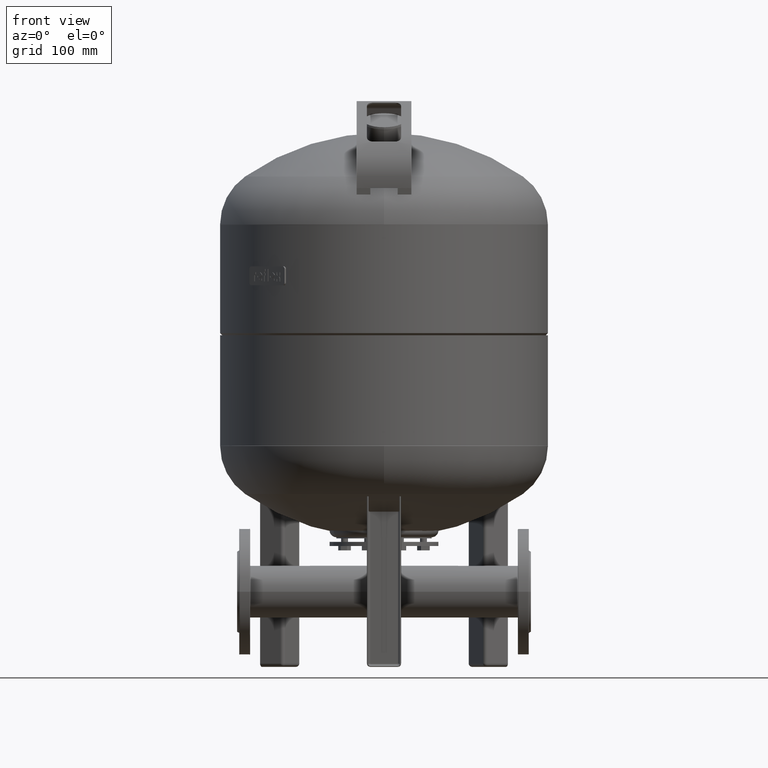
[diagram: clean part render]
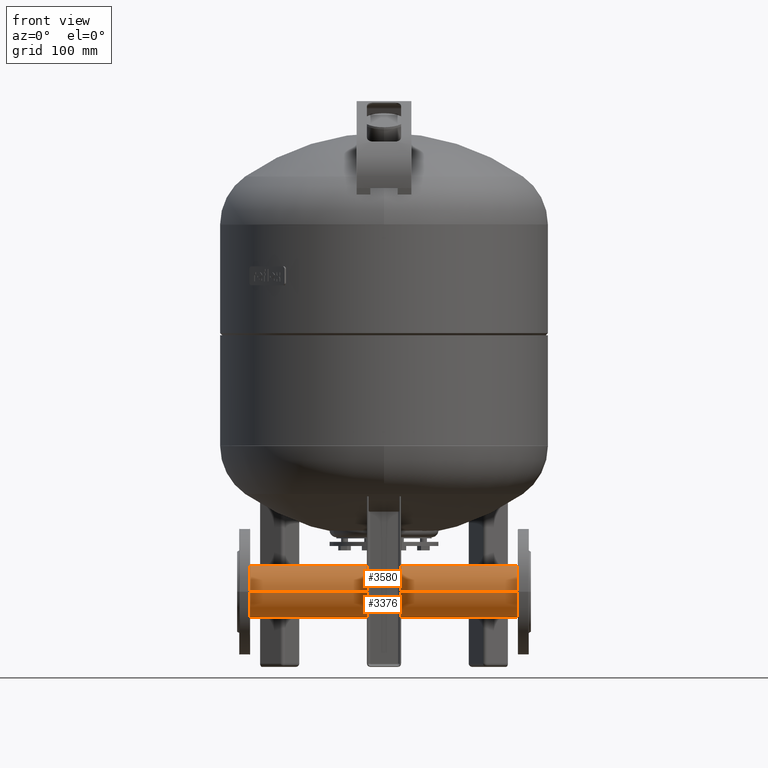
[diagram: same view with one multi-face feature highlighted, each face labeled with its STEP entity id]
A machine part, front view. The highlighted faces form ONE feature: a constant-radius fillet chain: 2 tangent blend faces with common blend radius 38.05 mm. The faces share edges in the B-rep.
Their STEP definitions:
[1] entity #3376 (Cylinder):
#3335=CARTESIAN_POINT('',(-2.842171E-014,0.0,110.000000000000010));
#3336=DIRECTION('',(1.0,0.0,0.0));
#3337=DIRECTION('',(0.0,1.0,0.0));
#3338=AXIS2_PLACEMENT_3D('',#3335,#3336,#3337);
#3339=CYLINDRICAL_SURFACE('',#3338,38.049999999999997);
#3340=CARTESIAN_POINT('',(204.999999999999970,38.049999999999997,110.000000000000010));
#3341=VERTEX_POINT('',#3340);
#3342=CARTESIAN_POINT('',(-205.000000000000030,38.049999999999997,110.000000000000010));
#3343=VERTEX_POINT('',#3342);
#3344=CARTESIAN_POINT('',(204.999999999999970,38.049999999999997,110.000000000000010));
#3345=DIRECTION('',(-1.0,0.0,0.0));
#3346=VECTOR('',#3345,410.0);
#3347=LINE('',#3344,#3346);
#3348=EDGE_CURVE('',#3341,#3343,#3347,.T.);
#3349=ORIENTED_EDGE('',*,*,#3348,.F.);
#3350=CARTESIAN_POINT('',(205.0,-38.049999999999997,110.000000000000010));
#3351=VERTEX_POINT('',#3350);
#3352=CARTESIAN_POINT('',(204.999999999999970,0.0,110.000000000000010));
#3353=DIRECTION('',(1.0,0.0,0.0));
#3354=DIRECTION('',(0.0,1.0,0.0));
#3355=AXIS2_PLACEMENT_3D('',#3352,#3353,#3354);
#3356=CIRCLE('',#3355,38.049999999999997);
#3357=EDGE_CURVE('',#3351,#3341,#3356,.T.);
#3358=ORIENTED_EDGE('',*,*,#3357,.F.);
#3359=CARTESIAN_POINT('',(-205.000000000000060,-38.049999999999997,110.000000000000010));
#3360=VERTEX_POINT('',#3359);
#3361=CARTESIAN_POINT('',(205.0,-38.049999999999997,110.000000000000010));
#3362=DIRECTION('',(-1.0,0.0,0.0));
#3363=VECTOR('',#3362,410.000000000000060);
#3364=LINE('',#3361,#3363);
#3365=EDGE_CURVE('',#3351,#3360,#3364,.T.);
#3366=ORIENTED_EDGE('',*,*,#3365,.T.);
#3367=CARTESIAN_POINT('',(-205.000000000000030,0.0,110.000000000000010));
#3368=DIRECTION('',(-1.0,0.0,0.0));
#3369=DIRECTION('',(0.0,1.0,0.0));
#3370=AXIS2_PLACEMENT_3D('',#3367,#3368,#3369);
#3371=CIRCLE('',#3370,38.049999999999997);
#3372=EDGE_CURVE('',#3343,#3360,#3371,.T.);
#3373=ORIENTED_EDGE('',*,*,#3372,.F.);
#3374=EDGE_LOOP('',(#3349,#3358,#3366,#3373));
#3375=FACE_OUTER_BOUND('',#3374,.T.);
#3376=ADVANCED_FACE('',(#3375),#3339,.T.);
[2] entity #3580 (Cylinder):
#3340=CARTESIAN_POINT('',(204.999999999999970,38.049999999999997,110.000000000000010));
#3341=VERTEX_POINT('',#3340);
#3342=CARTESIAN_POINT('',(-205.000000000000030,38.049999999999997,110.000000000000010));
#3343=VERTEX_POINT('',#3342);
#3344=CARTESIAN_POINT('',(204.999999999999970,38.049999999999997,110.000000000000010));
#3345=DIRECTION('',(-1.0,0.0,0.0));
#3346=VECTOR('',#3345,410.0);
#3347=LINE('',#3344,#3346);
#3348=EDGE_CURVE('',#3341,#3343,#3347,.T.);
#3350=CARTESIAN_POINT('',(205.0,-38.049999999999997,110.000000000000010));
#3351=VERTEX_POINT('',#3350);
#3359=CARTESIAN_POINT('',(-205.000000000000060,-38.049999999999997,110.000000000000010));
#3360=VERTEX_POINT('',#3359);
#3361=CARTESIAN_POINT('',(205.0,-38.049999999999997,110.000000000000010));
#3362=DIRECTION('',(-1.0,0.0,0.0));
#3363=VECTOR('',#3362,410.000000000000060);
#3364=LINE('',#3361,#3363);
#3365=EDGE_CURVE('',#3351,#3360,#3364,.T.);
#3384=CARTESIAN_POINT('',(21.199999999999999,2.581269E-015,148.050000000000010));
#3385=VERTEX_POINT('',#3384);
#3401=CARTESIAN_POINT('',(-21.199999999999999,-2.519328E-015,148.050000000000010));
#3402=VERTEX_POINT('',#3401);
#3409=CARTESIAN_POINT('',(0.0,-21.199999999999999,141.596874845465350));
#3410=VERTEX_POINT('',#3409);
#3411=CARTESIAN_POINT('',(0.0,-21.199999999999999,141.596874845465350));
#3412=CARTESIAN_POINT('',(-0.684585293074273,-21.199999999999999,141.596874845465350));
#3413=CARTESIAN_POINT('',(-1.377452142277209,-21.166708594477495,141.619292575960120));
#3414=CARTESIAN_POINT('',(-2.766374379911250,-21.030313833106273,141.710173695642060));
#3415=CARTESIAN_POINT('',(-3.462431083452391,-20.927218169830443,141.778628530880350));
#3416=CARTESIAN_POINT('',(-4.844914406470025,-20.650997411301287,141.958817206213150));
#3417=CARTESIAN_POINT('',(-5.531460522082607,-20.477858819467500,142.070541362384690));
#3418=CARTESIAN_POINT('',(-6.883365094038932,-20.063874060631406,142.331150347373300));
#3419=CARTESIAN_POINT('',(-7.548730982444999,-19.823032702061159,142.480004259834940));
#3420=CARTESIAN_POINT('',(-9.497166824297603,-19.005995384276886,142.969344920893380));
#3421=CARTESIAN_POINT('',(-10.734610572623220,-18.333244807259124,143.353443454886220));
#3422=CARTESIAN_POINT('',(-13.018063174153196,-16.788977358759897,144.156848428061550));
#3423=CARTESIAN_POINT('',(-14.064137267638760,-15.917190254670853,144.575449832900200));
#3424=CARTESIAN_POINT('',(-15.913009704236497,-14.068317818073117,145.367951044577180));
#3425=CARTESIAN_POINT('',(-16.784150816972002,-13.024363873479260,145.771688976334620));
#3426=CARTESIAN_POINT('',(-18.330022554113473,-10.740206992946073,146.522537428923040));
#3427=CARTESIAN_POINT('',(-19.004869331667052,-9.499909197223854,146.869120136502630));
#3428=CARTESIAN_POINT('',(-19.823801314344117,-7.546869513123008,147.300022927991310));
#3429=CARTESIAN_POINT('',(-20.065099964897350,-6.879923564494812,147.429137315187800));
#3430=CARTESIAN_POINT('',(-20.479525293916559,-5.525452795065939,147.652928701788940));
#3431=CARTESIAN_POINT('',(-20.652646762295106,-4.837924861326130,147.747596508600310));
#3432=CARTESIAN_POINT('',(-20.928502510781129,-3.454723999571811,147.899227448984650));
#3433=CARTESIAN_POINT('',(-21.031250399530684,-2.758946899530199,147.956195897754810));
#3434=CARTESIAN_POINT('',(-21.167002203943369,-1.372333436321581,148.031582874799200));
#3435=CARTESIAN_POINT('',(-21.199999999999999,-0.681496397760064,148.050000000000010));
#3436=CARTESIAN_POINT('',(-21.199999999999999,-2.519328E-015,148.050000000000010));
#3437=B_SPLINE_CURVE_WITH_KNOTS('',3,(#3411,#3412,#3413,#3414,#3415,#3416,#3417,#3418,#3419,#3420,#3421,#3422,#3423,#3424,#3425,#3426,#3427,#3428,#3429,#3430,#3431,#3432,#3433,#3434,#3435,#3436),.UNSPECIFIED.,.F.,.U.,(4,2,2,2,2,2,2,2,2,2,2,2,4),(0.0,2.053755879222818,4.107511758445637,6.161267637668455,8.215023516891273,12.322535275336911,16.430047033782547,20.519025420342913,24.608003806903277,26.652493000183462,28.696982193463644,30.741471386743825,32.785960580024010),.UNSPECIFIED.);
#3438=EDGE_CURVE('',#3410,#3402,#3437,.T.);
#3440=CARTESIAN_POINT('',(21.199999999999999,2.581269E-015,148.050000000000010));
#3441=CARTESIAN_POINT('',(21.199999999999999,-0.681496397760054,148.050000000000010));
#3442=CARTESIAN_POINT('',(21.167002203943373,-1.372333436321565,148.031582874799200));
#3443=CARTESIAN_POINT('',(21.031250399530688,-2.758946899530180,147.956195897754810));
#3444=CARTESIAN_POINT('',(20.928502510781129,-3.454723999571794,147.899227448984670));
#3445=CARTESIAN_POINT('',(20.652646762295106,-4.837924861326116,147.747596508600340));
#3446=CARTESIAN_POINT('',(20.479525293916566,-5.525452795065928,147.652928701788940));
#3447=CARTESIAN_POINT('',(20.065099964897357,-6.879923564494805,147.429137315187800));
#3448=CARTESIAN_POINT('',(19.823801314344117,-7.546869513122999,147.300022927991310));
#3449=CARTESIAN_POINT('',(19.004869331667056,-9.499909197223850,146.869120136502630));
#3450=CARTESIAN_POINT('',(18.330022554113473,-10.740206992946073,146.522537428923040));
#3451=CARTESIAN_POINT('',(16.784150816972005,-13.024363873479256,145.771688976334620));
#3452=CARTESIAN_POINT('',(15.913009704236501,-14.068317818073114,145.367951044577180));
#3453=CARTESIAN_POINT('',(14.064137267638761,-15.917190254670853,144.575449832900200));
#3454=CARTESIAN_POINT('',(13.018063174153193,-16.788977358759901,144.156848428061550));
#3455=CARTESIAN_POINT('',(10.734610572623215,-18.333244807259131,143.353443454886220));
#3456=CARTESIAN_POINT('',(9.497166824297601,-19.005995384276893,142.969344920893380));
#3457=CARTESIAN_POINT('',(7.548730982444997,-19.823032702061163,142.480004259834940));
#3458=CARTESIAN_POINT('',(6.883365094038929,-20.063874060631406,142.331150347373300));
#3459=CARTESIAN_POINT('',(5.531460522082605,-20.477858819467500,142.070541362384690));
#3460=CARTESIAN_POINT('',(4.844914406470023,-20.650997411301287,141.958817206213150));
#3461=CARTESIAN_POINT('',(3.462431083452390,-20.927218169830443,141.778628530880350));
#3462=CARTESIAN_POINT('',(2.766374379911249,-21.030313833106273,141.710173695642060));
#3463=CARTESIAN_POINT('',(1.377452142277209,-21.166708594477495,141.619292575960120));
#3464=CARTESIAN_POINT('',(0.684585293074273,-21.199999999999999,141.596874845465350));
#3465=CARTESIAN_POINT('',(0.0,-21.199999999999999,141.596874845465350));
#3466=B_SPLINE_CURVE_WITH_KNOTS('',3,(#3440,#3441,#3442,#3443,#3444,#3445,#3446,#3447,#3448,#3449,#3450,#3451,#3452,#3453,#3454,#3455,#3456,#3457,#3458,#3459,#3460,#3461,#3462,#3463,#3464,#3465),.UNSPECIFIED.,.F.,.U.,(4,2,2,2,2,2,2,2,2,2,2,2,4),(98.357881740072017,100.402370933352190,102.446860126632370,104.491349319912560,106.535838513192740,110.624816899753110,114.713795286313470,118.821307044759120,122.928818803204760,124.982574682427580,127.036330561650400,129.090086440873220,131.143842320096040),.UNSPECIFIED.);
#3467=EDGE_CURVE('',#3385,#3410,#3466,.T.);
#3478=CARTESIAN_POINT('',(-21.199999999999999,-2.519328E-015,148.050000000000010));
#3479=CARTESIAN_POINT('',(-21.199999999999999,0.681496397760059,148.050000000000010));
#3480=CARTESIAN_POINT('',(-21.167002203943369,1.372333436321577,148.031582874799200));
#3481=CARTESIAN_POINT('',(-21.031250399530684,2.758946899530193,147.956195897754810));
#3482=CARTESIAN_POINT('',(-20.928502510781129,3.454723999571804,147.899227448984650));
#3483=CARTESIAN_POINT('',(-20.652646762295106,4.837924861326121,147.747596508600310));
#3484=CARTESIAN_POINT('',(-20.479525293916566,5.525452795065932,147.652928701788940));
#3485=CARTESIAN_POINT('',(-20.065099964897357,6.879923564494805,147.429137315187800));
#3486=CARTESIAN_POINT('',(-19.823801314344117,7.546869513122999,147.300022927991310));
#3487=CARTESIAN_POINT('',(-19.004869331667059,9.499909197223849,146.869120136502630));
#3488=CARTESIAN_POINT('',(-18.330022554113476,10.740206992946069,146.522537428923040));
#3489=CARTESIAN_POINT('',(-16.784150816972002,13.024363873479258,145.771688976334620));
#3490=CARTESIAN_POINT('',(-15.913009704236501,14.068317818073115,145.367951044577180));
#3491=CARTESIAN_POINT('',(-14.064137267638763,15.917190254670853,144.575449832900200));
#3492=CARTESIAN_POINT('',(-13.018063174153200,16.788977358759897,144.156848428061550));
#3493=CARTESIAN_POINT('',(-10.734610572623222,18.333244807259124,143.353443454886220));
#3494=CARTESIAN_POINT('',(-9.497166824297610,19.005995384276886,142.969344920893380));
#3495=CARTESIAN_POINT('',(-7.548730982445005,19.823032702061159,142.480004259834940));
#3496=CARTESIAN_POINT('',(-6.883365094038936,20.063874060631402,142.331150347373300));
#3497=CARTESIAN_POINT('',(-5.531460522082611,20.477858819467496,142.070541362384690));
#3498=CARTESIAN_POINT('',(-4.844914406470029,20.650997411301287,141.958817206213150));
#3499=CARTESIAN_POINT('',(-3.462431083452394,20.927218169830443,141.778628530880350));
#3500=CARTESIAN_POINT('',(-2.766374379911251,21.030313833106273,141.710173695642060));
#3501=CARTESIAN_POINT('',(-1.377452142277209,21.166708594477495,141.619292575960120));
#3502=CARTESIAN_POINT('',(-0.684585293074273,21.199999999999999,141.596874845465350));
#3503=CARTESIAN_POINT('',(0.684585293074273,21.199999999999999,141.596874845465350));
#3504=CARTESIAN_POINT('',(1.377452142277209,21.166708594477495,141.619292575960120));
#3505=CARTESIAN_POINT('',(2.766374379911251,21.030313833106273,141.710173695642060));
#3506=CARTESIAN_POINT('',(3.462431083452394,20.927218169830443,141.778628530880350));
#3507=CARTESIAN_POINT('',(4.844914406470029,20.650997411301287,141.958817206213150));
#3508=CARTESIAN_POINT('',(5.531460522082611,20.477858819467496,142.070541362384690));
#3509=CARTESIAN_POINT('',(6.883365094038936,20.063874060631402,142.331150347373300));
#3510=CARTESIAN_POINT('',(7.548730982445005,19.823032702061159,142.480004259834940));
#3511=CARTESIAN_POINT('',(9.497166824297612,19.005995384276886,142.969344920893380));
#3512=CARTESIAN_POINT('',(10.734610572623229,18.333244807259121,143.353443454886220));
#3513=CARTESIAN_POINT('',(13.018063174153202,16.788977358759894,144.156848428061550));
#3514=CARTESIAN_POINT('',(14.064137267638760,15.917190254670853,144.575449832900200));
#3515=CARTESIAN_POINT('',(15.913009704236494,14.068317818073121,145.367951044577180));
#3516=CARTESIAN_POINT('',(16.784150816971998,13.024363873479265,145.771688976334620));
#3517=CARTESIAN_POINT('',(18.330022554113469,10.740206992946081,146.522537428923040));
#3518=CARTESIAN_POINT('',(19.004869331667052,9.499909197223856,146.869120136502630));
#3519=CARTESIAN_POINT('',(19.823801314344117,7.546869513123005,147.300022927991310));
#3520=CARTESIAN_POINT('',(20.065099964897350,6.879923564494810,147.429137315187800));
#3521=CARTESIAN_POINT('',(20.479525293916559,5.525452795065934,147.652928701788940));
#3522=CARTESIAN_POINT('',(20.652646762295106,4.837924861326123,147.747596508600310));
#3523=CARTESIAN_POINT('',(20.928502510781129,3.454723999571801,147.899227448984650));
#3524=CARTESIAN_POINT('',(21.031250399530684,2.758946899530188,147.956195897754780));
#3525=CARTESIAN_POINT('',(21.167002203943369,1.372333436321575,148.031582874799200));
#3526=CARTESIAN_POINT('',(21.199999999999999,0.681496397760060,148.050000000000010));
#3527=CARTESIAN_POINT('',(21.199999999999999,2.581269E-015,148.050000000000010));
#3528=B_SPLINE_CURVE_WITH_KNOTS('',3,(#3478,#3479,#3480,#3481,#3482,#3483,#3484,#3485,#3486,#3487,#3488,#3489,#3490,#3491,#3492,#3493,#3494,#3495,#3496,#3497,#3498,#3499,#3500,#3501,#3502,#3503,#3504,#3505,#3506,#3507,#3508,#3509,#3510,#3511,#3512,#3513,#3514,#3515,#3516,#3517,#3518,#3519,#3520,#3521,#3522,#3523,#3524,#3525,#3526,#3527),.UNSPECIFIED.,.F.,.U.,(4,2,2,2,2,2,2,2,2,2,2,2,2,2,2,2,2,2,2,2,2,2,2,2,4),(32.785960580024010,34.830449773304196,36.874938966584374,38.919428159864552,40.963917353144737,45.052895739705100,49.141874126265463,53.249385884711103,57.356897643156742,59.410653522379562,61.464409401602381,63.518165280825201,65.571921160048021,67.625677039270840,69.679432918493660,71.733188797716480,73.786944676939299,77.894456435384939,82.001968193830564,86.090946580390920,90.179924966951290,92.224414160231476,94.268903353511661,96.313392546791846,98.357881740072017),.UNSPECIFIED.);
#3529=EDGE_CURVE('',#3402,#3385,#3528,.T.);
#3552=CARTESIAN_POINT('',(-2.842171E-014,0.0,110.000000000000010));
#3553=DIRECTION('',(1.0,0.0,0.0));
#3554=DIRECTION('',(0.0,1.0,0.0));
#3555=AXIS2_PLACEMENT_3D('',#3552,#3553,#3554);
#3556=CYLINDRICAL_SURFACE('',#3555,38.049999999999997);
#3557=ORIENTED_EDGE('',*,*,#3348,.T.);
#3558=CARTESIAN_POINT('',(-205.000000000000030,0.0,110.000000000000010));
#3559=DIRECTION('',(-1.0,0.0,0.0));
#3560=DIRECTION('',(0.0,1.0,0.0));
#3561=AXIS2_PLACEMENT_3D('',#3558,#3559,#3560);
#3562=CIRCLE('',#3561,38.049999999999997);
#3563=EDGE_CURVE('',#3360,#3343,#3562,.T.);
#3564=ORIENTED_EDGE('',*,*,#3563,.F.);
#3565=ORIENTED_EDGE('',*,*,#3365,.F.);
#3566=CARTESIAN_POINT('',(204.999999999999970,0.0,110.000000000000010));
#3567=DIRECTION('',(1.0,0.0,0.0));
#3568=DIRECTION('',(0.0,1.0,0.0));
#3569=AXIS2_PLACEMENT_3D('',#3566,#3567,#3568);
#3570=CIRCLE('',#3569,38.049999999999997);
#3571=EDGE_CURVE('',#3341,#3351,#3570,.T.);
#3572=ORIENTED_EDGE('',*,*,#3571,.F.);
#3573=EDGE_LOOP('',(#3557,#3564,#3565,#3572));
#3574=FACE_OUTER_BOUND('',#3573,.T.);
#3575=ORIENTED_EDGE('',*,*,#3438,.T.);
#3576=ORIENTED_EDGE('',*,*,#3529,.T.);
#3577=ORIENTED_EDGE('',*,*,#3467,.T.);
#3578=EDGE_LOOP('',(#3575,#3576,#3577));
#3579=FACE_BOUND('',#3578,.T.);
#3580=ADVANCED_FACE('',(#3574,#3579),#3556,.T.);